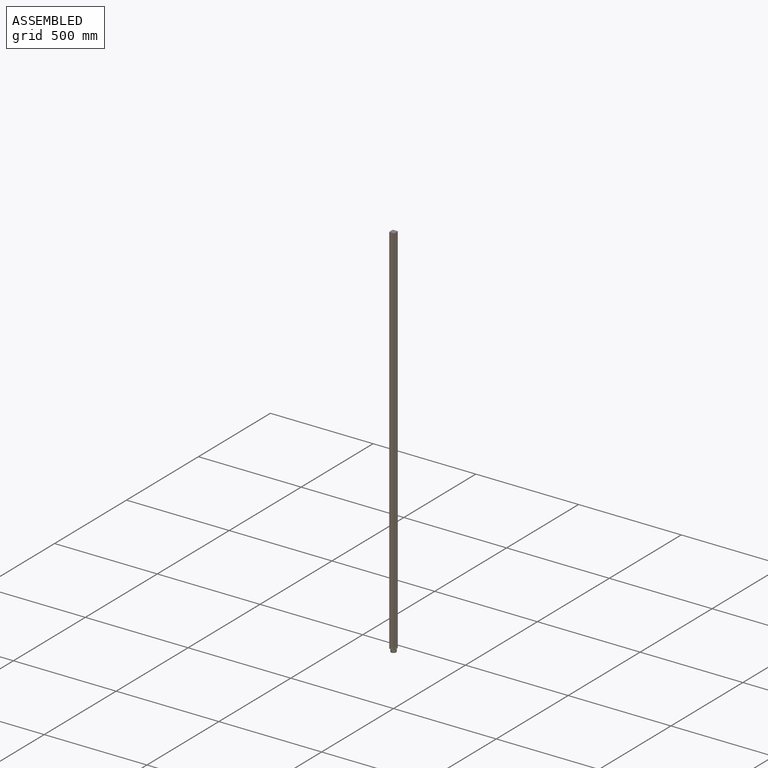
[diagram: assembled view]
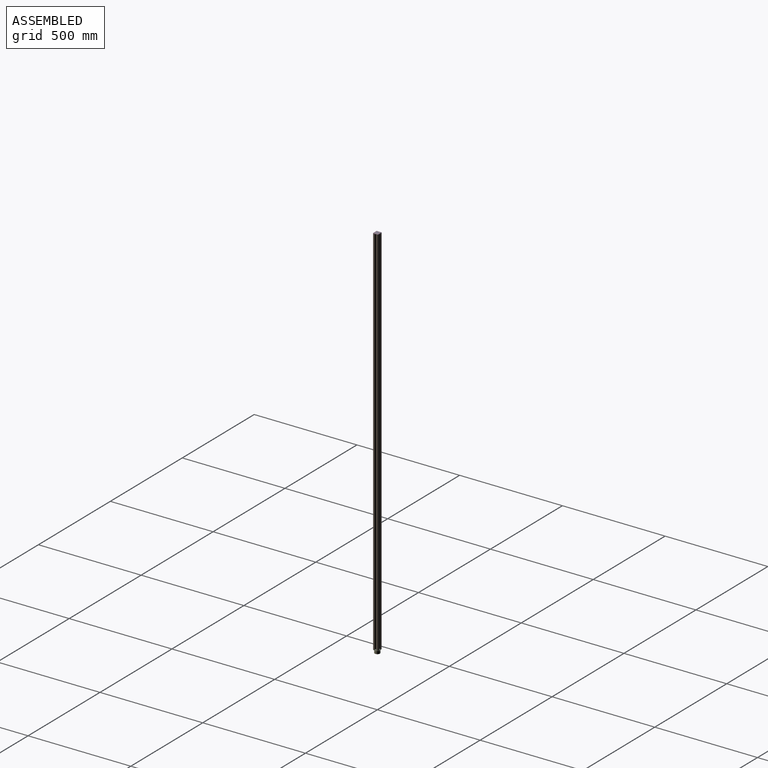
[diagram: assembled view, second angle]
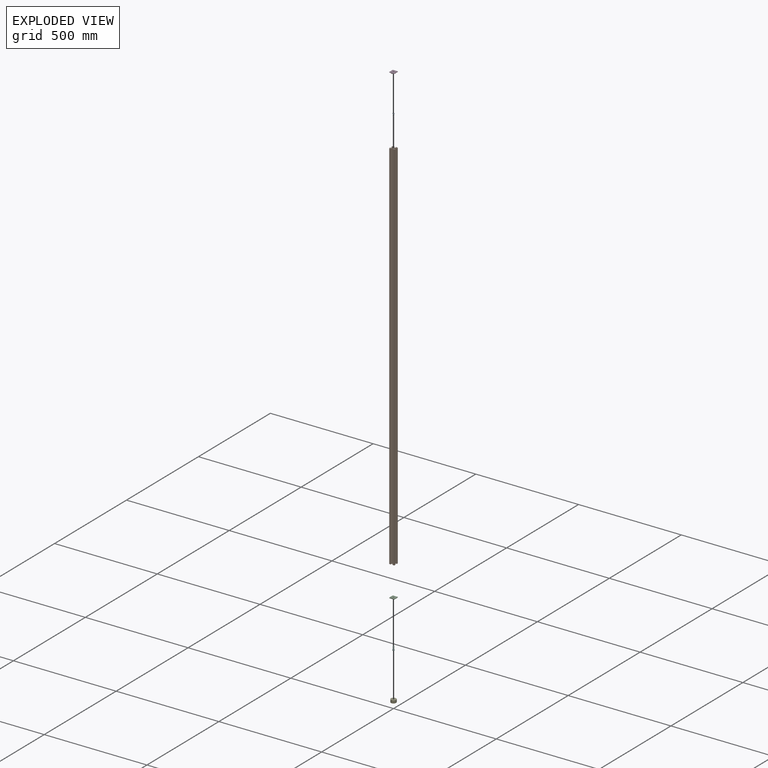
[diagram: exploded view]
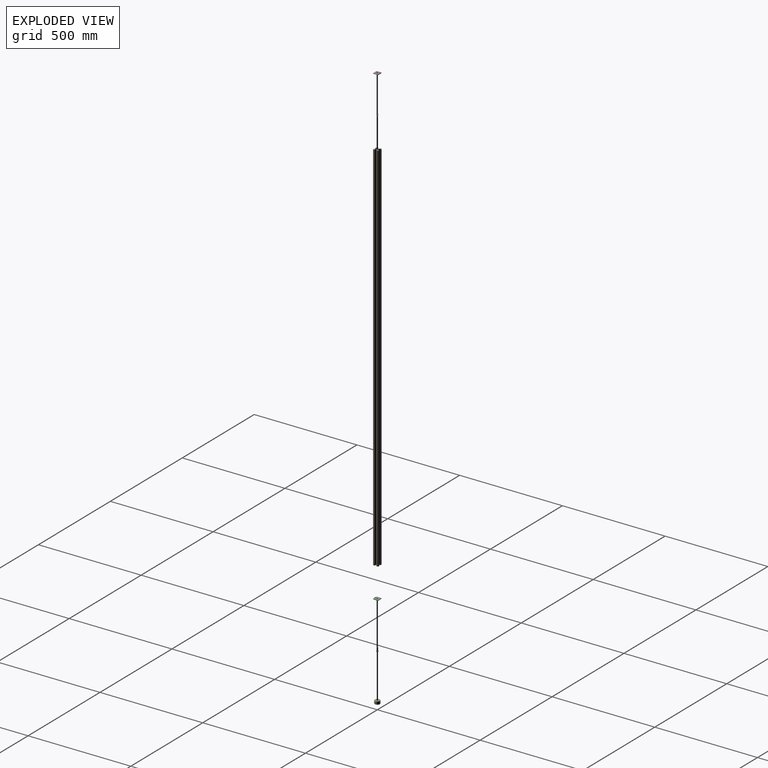
[diagram: exploded view, second angle]
ASSEMBLY  parts=6 mates=12
PART A: 50 faces, bbox 10.2x13.8x10.2 mm
  f0: torus R=0.2mm, axis (0,-1,0), area 42.3mm2, adj f1,f2,f3
  f1: torus R=0.2mm, axis (0,-1,0), area 42.3mm2, adj f0,f2,f3
  f2: plane 0.4x0.4mm, normal (0,1,0), area 0.1mm2, adj f0,f1
  f3: plane 10.16x10.16mm, normal (0,-1,0), area 73mm2, adj f0,f1,f4,f5
  f4: cylinder r=1.6mm len=3.68mm, axis (0,1,0), area 18.5mm2, adj f3,f5,f6
  f5: cylinder r=1.6mm len=12.04mm, axis (0,1,0), area 37.7mm2, adj f3,f4,f6,f7,f8,f9,f10,f11
  f6: cone r=1.6mm half-angle=69deg, axis (0,1,0), area 12.5mm2, adj f4,f5,f7,f10,f49
  f7: cone r=1.6mm half-angle=69deg, axis (0,1,0), area 5mm2, adj f5,f6,f8,f9
  f8: plane 1.4x1.32mm, normal (0,0,-1), area 0.6mm2, adj f5,f7,f9
  f9: cone r=2.92mm half-angle=43.4deg, axis (0,1,0), area 6.8mm2, adj f5,f7,f8,f10
  f10: cone r=2.92mm half-angle=43.4deg, axis (0,1,0), area 17mm2, adj f5,f6,f9,f11,f49
  f11: cylinder r=1.6mm len=3.2mm, axis (0,1,0), area 2.6mm2, adj f5,f10,f12
  f12: cone r=1.6mm half-angle=69deg, axis (0,1,0), area 12.5mm2, adj f5,f11,f13,f16,f48
  f13: cone r=1.6mm half-angle=69deg, axis (0,1,0), area 5mm2, adj f5,f12,f14,f15
  f14: plane 1.4x1.32mm, normal (0,0,-1), area 0.6mm2, adj f5,f13,f15
  f15: cone r=2.92mm half-angle=43.4deg, axis (0,1,0), area 6.8mm2, adj f5,f13,f14,f16
  f16: cone r=2.92mm half-angle=43.4deg, axis (0,1,0), area 17mm2, adj f5,f12,f15,f17,f48
  f17: cylinder r=1.6mm len=3.2mm, axis (0,1,0), area 2.6mm2, adj f5,f16,f18
  f18: cone r=1.6mm half-angle=69deg, axis (0,1,0), area 12.5mm2, adj f5,f17,f19,f22,f47
  f19: cone r=1.6mm half-angle=69deg, axis (0,1,0), area 5mm2, adj f5,f18,f20,f21
  f20: plane 1.4x1.32mm, normal (0,0,-1), area 0.6mm2, adj f5,f19,f21
  f21: cone r=2.92mm half-angle=43.4deg, axis (0,1,0), area 6.8mm2, adj f5,f19,f20,f22
  f22: cone r=2.92mm half-angle=43.4deg, axis (0,1,0), area 17mm2, adj f5,f18,f21,f23,f47
  f23: cylinder r=1.6mm len=3.2mm, axis (0,1,0), area 2.6mm2, adj f5,f22,f24
  f24: cone r=1.6mm half-angle=69deg, axis (0,1,0), area 12.5mm2, adj f5,f23,f25,f28,f46
  f25: cone r=1.6mm half-angle=69deg, axis (0,1,0), area 5mm2, adj f5,f24,f26,f27
  f26: plane 1.4x1.32mm, normal (0,0,-1), area 0.6mm2, adj f5,f25,f27
  f27: cone r=2.92mm half-angle=43.4deg, axis (0,1,0), area 6.8mm2, adj f5,f25,f26,f28
  f28: cone r=2.92mm half-angle=43.4deg, axis (0,1,0), area 17mm2, adj f5,f24,f27,f29,f46
  f29: cylinder r=1.6mm len=3.2mm, axis (0,1,0), area 2.6mm2, adj f5,f28,f30
  f30: cone r=1.6mm half-angle=69deg, axis (0,1,0), area 12.5mm2, adj f5,f29,f31,f34,f35
  f31: cone r=1.6mm half-angle=69deg, axis (0,1,0), area 5mm2, adj f5,f30,f32,f33
  f32: plane 1.4x1.32mm, normal (0,0,-1), area 0.6mm2, adj f5,f31,f33
  f33: cone r=2.92mm half-angle=43.4deg, axis (0,1,0), area 6.8mm2, adj f31,f32,f34,f36
  f34: cone r=2.92mm half-angle=43.4deg, axis (0,1,0), area 17mm2, adj f30,f33,f35,f36
  f35: plane 1.4x0.95mm, normal (0.72,0,0.69), area 0.6mm2, adj f5,f30,f34
  f36: plane 5.61x5.61mm, normal (0,1,0), area 14.5mm2, adj f33,f34,f37,f38,f39,f40
  f37: plane 1.65x0.87mm, normal (0.72,0,0.69), area 1mm2, adj f5,f36,f38
  f38: cone r=2.8mm half-angle=36.1deg, axis (0,1,0), area 17.6mm2, adj f5,f36,f37,f39,f41
  f39: cone r=2.8mm half-angle=36.1deg, axis (0,1,0), area 7.1mm2, adj f5,f36,f38,f40
  f40: plane 1.65x1.2mm, normal (0,0,-1), area 1mm2, adj f5,f36,f39
  f41: cylinder r=1.6mm len=3.2mm, axis (0,1,0), area 1.1mm2, adj f5,f38,f42
  f42: plane 3.45x3.45mm, normal (0,1,0), area 1.3mm2, adj f5,f41,f43,f44
  f43: cone r=1.73mm half-angle=38.9deg, axis (0,1,0), area 3.9mm2, adj f42,f44,f45
  f44: cone r=1.73mm half-angle=38.9deg, axis (0,1,0), area 3.9mm2, adj f42,f43,f45
  f45: plane 2.39x2.39mm, normal (0,-1,0), area 4.5mm2, adj f43,f44
  f46: plane 1.4x0.95mm, normal (0.72,0,0.69), area 0.6mm2, adj f5,f24,f28
  f47: plane 1.4x0.95mm, normal (0.72,0,0.69), area 0.6mm2, adj f5,f18,f22
  f48: plane 1.4x0.95mm, normal (0.72,0,0.69), area 0.6mm2, adj f5,f12,f16
  f49: plane 1.4x0.95mm, normal (0.72,0,0.69), area 0.6mm2, adj f5,f6,f10
PART B: 83 faces, bbox 25.4x25.4x1828.8 mm
  f0: cylinder r=0.51mm len=1828.8mm, axis (0,0,-1), area 2918.4mm2, adj f1,f79,f81,f82
  f1: cylinder r=2.11mm len=1828.8mm, axis (0,0,-1), area 6149.1mm2, adj f0,f2,f81,f82
  f2: cylinder r=0.51mm len=1828.8mm, axis (0,0,-1), area 2918.4mm2, adj f1,f3,f81,f82
  f3: plane 1828.8x3.22mm, normal (0,-1,0), area 5883.8mm2, adj f2,f4,f81,f82
  f4: cylinder r=0.51mm len=1828.8mm, axis (0,0,-1), area 2918.6mm2, adj f3,f5,f81,f82
  f5: plane 1828.8x0.97mm, normal (0,-1,0), area 1780.7mm2, adj f4,f6,f81,f82
  f6: cylinder r=1.1mm len=1828.8mm, axis (0,0,-1), area 6348mm2, adj f5,f7,f81,f82
  f7: plane 1828.8x2.13mm, normal (0,1,0), area 3897.9mm2, adj f6,f8,f81,f82
  f8: cylinder r=1.02mm len=1828.8mm, axis (0,0,-1), area 4378mm2, adj f7,f9,f81,f82
  f9: plane 1828.8x3.33mm, normal (0.71,-0.71,0), area 8612.5mm2, adj f8,f10,f81,f82
  f10: cylinder r=3.17mm len=1828.8mm, axis (0,0,-1), area 4560.4mm2, adj f9,f11,f81,f82
  f11: plane 1828.8x3.24mm, normal (0,-1,0), area 5918.4mm2, adj f10,f12,f81,f82
  f12: cylinder r=3.17mm len=1828.8mm, axis (0,0,-1), area 4560.4mm2, adj f11,f13,f81,f82
  f13: plane 1828.8x3.33mm, normal (-0.71,-0.71,0), area 8612.5mm2, adj f12,f14,f81,f82
  f14: cylinder r=1.02mm len=1828.8mm, axis (0,0,-1), area 4378mm2, adj f13,f15,f81,f82
  f15: plane 1828.8x2.13mm, normal (0,1,0), area 3897.9mm2, adj f14,f16,f81,f82
  f16: cylinder r=1.1mm len=1828.8mm, axis (0,0,-1), area 6348mm2, adj f15,f17,f81,f82
  f17: plane 1828.8x0.97mm, normal (0,-1,0), area 1780.7mm2, adj f16,f18,f81,f82
  f18: cylinder r=0.51mm len=1828.8mm, axis (0,0,-1), area 2918.6mm2, adj f17,f19,f81,f82
  f19: plane 1828.8x3.22mm, normal (0,-1,0), area 5883.8mm2, adj f18,f20,f81,f82
  f20: cylinder r=0.51mm len=1828.8mm, axis (0,0,-1), area 2918.4mm2, adj f19,f21,f81,f82
  f21: cylinder r=2.11mm len=1828.8mm, axis (0,0,-1), area 6149.1mm2, adj f20,f22,f81,f82
  f22: cylinder r=0.51mm len=1828.8mm, axis (0,0,-1), area 2918.4mm2, adj f21,f23,f81,f82
  f23: plane 1828.8x3.22mm, normal (1,0,0), area 5883.8mm2, adj f22,f24,f81,f82
  f24: cylinder r=0.51mm len=1828.8mm, axis (0,0,-1), area 2918.6mm2, adj f23,f25,f81,f82
  f25: plane 1828.8x0.97mm, normal (1,0,0), area 1780.7mm2, adj f24,f26,f81,f82
  f26: cylinder r=1.1mm len=1828.8mm, axis (0,0,-1), area 6348mm2, adj f25,f27,f81,f82
  f27: plane 1828.8x2.13mm, normal (-1,0,0), area 3897.9mm2, adj f26,f28,f81,f82
  f28: cylinder r=1.02mm len=1828.8mm, axis (0,0,-1), area 4378mm2, adj f27,f29,f81,f82
  f29: plane 1828.8x3.33mm, normal (0.71,0.71,0), area 8612.5mm2, adj f28,f30,f81,f82
  f30: cylinder r=3.17mm len=1828.8mm, axis (0,0,-1), area 4560.4mm2, adj f29,f31,f81,f82
  f31: plane 1828.8x3.24mm, normal (1,0,0), area 5918.4mm2, adj f30,f32,f81,f82
  f32: cylinder r=3.17mm len=1828.8mm, axis (0,0,-1), area 4560.4mm2, adj f31,f33,f81,f82
  f33: plane 1828.8x3.33mm, normal (0.71,-0.71,0), area 8612.5mm2, adj f32,f34,f81,f82
  f34: cylinder r=1.02mm len=1828.8mm, axis (0,0,-1), area 4378mm2, adj f33,f35,f81,f82
  f35: plane 1828.8x2.13mm, normal (-1,0,0), area 3897.9mm2, adj f34,f36,f81,f82
  f36: cylinder r=1.1mm len=1828.8mm, axis (0,0,-1), area 6348mm2, adj f35,f37,f81,f82
  f37: plane 1828.8x0.97mm, normal (1,0,0), area 1780.7mm2, adj f36,f38,f81,f82
  f38: cylinder r=0.51mm len=1828.8mm, axis (0,0,-1), area 2918.6mm2, adj f37,f39,f81,f82
  f39: plane 1828.8x3.22mm, normal (1,0,0), area 5883.8mm2, adj f38,f40,f81,f82
  f40: cylinder r=0.51mm len=1828.8mm, axis (0,0,-1), area 2918.4mm2, adj f39,f41,f81,f82
  f41: cylinder r=2.11mm len=1828.8mm, axis (0,0,-1), area 6149.1mm2, adj f40,f42,f81,f82
  f42: cylinder r=0.51mm len=1828.8mm, axis (0,0,-1), area 2918.4mm2, adj f41,f43,f81,f82
  f43: plane 1828.8x3.22mm, normal (0,1,0), area 5883.8mm2, adj f42,f44,f81,f82
  f44: cylinder r=0.51mm len=1828.8mm, axis (0,0,-1), area 2918.6mm2, adj f43,f45,f81,f82
  f45: plane 1828.8x0.97mm, normal (0,1,0), area 1780.7mm2, adj f44,f46,f81,f82
  f46: cylinder r=1.1mm len=1828.8mm, axis (0,0,-1), area 6348mm2, adj f45,f47,f81,f82
  f47: plane 1828.8x2.13mm, normal (0,-1,0), area 3897.9mm2, adj f46,f48,f81,f82
  f48: cylinder r=1.02mm len=1828.8mm, axis (0,0,-1), area 4378mm2, adj f47,f49,f81,f82
  f49: plane 1828.8x3.33mm, normal (-0.71,0.71,0), area 8612.5mm2, adj f48,f50,f81,f82
  f50: cylinder r=3.17mm len=1828.8mm, axis (0,0,-1), area 4560.4mm2, adj f49,f51,f81,f82
  f51: plane 1828.8x3.24mm, normal (0,1,0), area 5918.4mm2, adj f50,f52,f81,f82
  f52: cylinder r=3.17mm len=1828.8mm, axis (0,0,-1), area 4560.4mm2, adj f51,f53,f81,f82
  f53: plane 1828.8x3.33mm, normal (0.71,0.71,0), area 8612.5mm2, adj f52,f54,f81,f82
  f54: cylinder r=1.02mm len=1828.8mm, axis (0,0,-1), area 4378mm2, adj f53,f55,f81,f82
  f55: plane 1828.8x2.13mm, normal (0,-1,0), area 3897.9mm2, adj f54,f56,f81,f82
  f56: cylinder r=1.1mm len=1828.8mm, axis (0,0,-1), area 6348mm2, adj f55,f57,f81,f82
  f57: plane 1828.8x0.97mm, normal (0,1,0), area 1780.7mm2, adj f56,f58,f81,f82
  f58: cylinder r=0.51mm len=1828.8mm, axis (0,0,-1), area 2918.6mm2, adj f57,f59,f81,f82
  f59: plane 1828.8x3.22mm, normal (0,1,0), area 5883.8mm2, adj f58,f60,f81,f82
  f60: cylinder r=0.51mm len=1828.8mm, axis (0,0,-1), area 2918.4mm2, adj f59,f61,f81,f82
  f61: cylinder r=2.11mm len=1828.8mm, axis (0,0,-1), area 6149.1mm2, adj f60,f62,f81,f82
  f62: cylinder r=0.51mm len=1828.8mm, axis (0,0,-1), area 2918.4mm2, adj f61,f63,f81,f82
  f63: plane 1828.8x3.22mm, normal (-1,0,0), area 5883.8mm2, adj f62,f64,f81,f82
  f64: cylinder r=0.51mm len=1828.8mm, axis (0,0,-1), area 2918.6mm2, adj f63,f65,f81,f82
  f65: plane 1828.8x0.97mm, normal (-1,0,0), area 1780.7mm2, adj f64,f66,f81,f82
  f66: cylinder r=1.1mm len=1828.8mm, axis (0,0,-1), area 6348mm2, adj f65,f67,f81,f82
  f67: plane 1828.8x2.13mm, normal (1,0,0), area 3897.9mm2, adj f66,f68,f81,f82
  f68: cylinder r=1.02mm len=1828.8mm, axis (0,0,-1), area 4378mm2, adj f67,f69,f81,f82
  f69: plane 1828.8x3.33mm, normal (-0.71,-0.71,0), area 8612.5mm2, adj f68,f70,f81,f82
  f70: cylinder r=3.17mm len=1828.8mm, axis (0,0,-1), area 4560.4mm2, adj f69,f71,f81,f82
  f71: plane 1828.8x3.24mm, normal (-1,0,0), area 5918.4mm2, adj f70,f72,f81,f82
  f72: cylinder r=3.17mm len=1828.8mm, axis (0,0,-1), area 4560.4mm2, adj f71,f73,f81,f82
  f73: plane 1828.8x3.33mm, normal (-0.71,0.71,0), area 8612.5mm2, adj f72,f74,f81,f82
  f74: cylinder r=1.02mm len=1828.8mm, axis (0,0,-1), area 4378mm2, adj f73,f75,f81,f82
  f75: plane 1828.8x2.13mm, normal (1,0,0), area 3897.9mm2, adj f74,f76,f81,f82
  f76: cylinder r=1.1mm len=1828.8mm, axis (0,0,-1), area 6348mm2, adj f75,f77,f81,f82
  f77: plane 1828.8x0.97mm, normal (-1,0,0), area 1780.7mm2, adj f76,f78,f81,f82
  f78: cylinder r=0.51mm len=1828.8mm, axis (0,0,-1), area 2918.6mm2, adj f77,f79,f81,f82
  f79: plane 1828.8x3.22mm, normal (-1,0,0), area 5883.8mm2, adj f0,f78,f81,f82
  f80: cylinder r=2.6mm len=1828.8mm, axis (0,0,-1), area 29916mm2, adj f81,f82
  f81: plane 25.4x25.4mm, normal (0,0,1), area 279.7mm2, adj f0,f1,f2,f3,f4,f5,f6,f7
  f82: plane 25.4x25.4mm, normal (0,0,-1), area 279.7mm2, adj f0,f1,f2,f3,f4,f5,f6,f7
PART C: 24 faces, bbox 25.4x25.4x5.3 mm
  f0: plane 2.11x2.11mm, normal (1,0,0), area 4.4mm2, adj f1,f2,f21,f22
  f1: plane 21.18x3.18mm, normal (0,1,0), area 36mm2, adj f0,f2,f3,f7,f9,f22,f23
  f2: plane 25.4x25.4mm, normal (0,0,-1), area 594.5mm2, adj f0,f1,f3,f4,f9,f10,f11,f12
  f3: cylinder r=2.11mm len=2.11mm, axis (0,0,-1), area 3.5mm2, adj f1,f2,f4,f6
  f4: plane 21.18x1.07mm, normal (-1,0,0), area 22.6mm2, adj f2,f3,f5,f13
  f5: cylinder r=2.11mm len=21.18mm, axis (0,1,0), area 70.2mm2, adj f4,f6,f14,f16
  f6: sphere r=2.11mm, area 7mm2, adj f3,f5,f7
  f7: cylinder r=2.11mm len=21.18mm, axis (1,0,0), area 70.2mm2, adj f1,f6,f8,f16
  f8: sphere r=2.11mm, area 7mm2, adj f7,f9,f17
  f9: cylinder r=2.11mm len=2.11mm, axis (0,0,1), area 3.5mm2, adj f1,f2,f8,f10
  f10: plane 21.18x1.07mm, normal (1,0,0), area 22.6mm2, adj f2,f9,f11,f17
  f11: cylinder r=2.11mm len=2.11mm, axis (0,0,1), area 3.5mm2, adj f2,f10,f12,f18
  f12: plane 21.18x1.07mm, normal (0,-1,0), area 22.6mm2, adj f2,f11,f13,f15
  f13: cylinder r=2.11mm len=2.11mm, axis (0,0,1), area 3.5mm2, adj f2,f4,f12,f14
  f14: sphere r=2.11mm, area 7mm2, adj f5,f13,f15
  f15: cylinder r=2.11mm len=21.18mm, axis (-1,0,0), area 70.2mm2, adj f12,f14,f16,f18
  f16: plane 21.18x21.18mm, normal (0,0,1), area 415.3mm2, adj f5,f7,f15,f17,f19,f20
  f17: cylinder r=2.11mm len=21.18mm, axis (0,-1,0), area 70.2mm2, adj f8,f10,f16,f18
  f18: sphere r=2.11mm, area 7mm2, adj f11,f15,f17
  f19: cylinder r=3.26mm len=6.53mm, axis (0,0,1), area 32.6mm2, adj f2,f16,f20
  f20: cylinder r=3.26mm len=6.53mm, axis (0,0,1), area 32.6mm2, adj f2,f16,f19
  f21: plane 6.35x2.11mm, normal (0,-1,0), area 13.4mm2, adj f0,f2,f22,f23
  f22: plane 6.35x2.11mm, normal (0,0,-1), area 13.4mm2, adj f0,f1,f21,f23
  f23: plane 2.11x2.11mm, normal (-1,0,0), area 4.4mm2, adj f1,f2,f21,f22
PART D: same geometry as C
PART E: 13 faces, bbox 27.5x14.3x27.5 mm
  f0: plane 13.49x13.49mm, normal (0,1,0), area 102.9mm2, adj f1,f2,f11,f12
  f1: cylinder r=6.74mm len=13.49mm, axis (0,1,0), area 167.9mm2, adj f0,f2,f3
  f2: cylinder r=6.74mm len=13.49mm, axis (0,1,0), area 167.9mm2, adj f0,f1,f3
  f3: plane 24.13x24.13mm, normal (0,1,0), area 314.4mm2, adj f1,f2,f4,f5
  f4: torus R=12.06mm, axis (0,-1,0), area 39.1mm2, adj f3,f5,f7
  f5: torus R=12.06mm, axis (0,-1,0), area 39.1mm2, adj f3,f4,f6
  f6: cylinder r=12.7mm len=25.4mm, axis (0,1,0), area 518.9mm2, adj f5,f7,f9
  f7: cylinder r=12.7mm len=25.4mm, axis (0,1,0), area 518.9mm2, adj f4,f6,f8
  f8: torus R=12.06mm, axis (0,-1,0), area 39.1mm2, adj f7,f9,f10
  f9: torus R=12.06mm, axis (0,-1,0), area 39.1mm2, adj f6,f8,f10
  f10: plane 24.13x24.13mm, normal (0,-1,0), area 417.3mm2, adj f8,f9,f11,f12
  f11: cylinder r=3.57mm len=7.14mm, axis (0,1,0), area 71.2mm2, adj f0,f10,f12
  f12: cylinder r=3.57mm len=7.14mm, axis (0,1,0), area 71.2mm2, adj f0,f10,f11
PART F: 18 faces, bbox 22.4x11.1x11.1 mm
  f0: plane 2.22x1.98mm, normal (0,-0.5,0.87), area 5.1mm2, adj f1,f2,f5,f6
  f1: plane 2.29x2.22mm, normal (0,-1,0), area 5.1mm2, adj f0,f2,f6,f7
  f2: plane 4.58x3.97mm, normal (-1,0,0), area 13.6mm2, adj f0,f1,f3,f4,f5,f7
  f3: plane 2.22x1.98mm, normal (0,0.5,-0.87), area 5.1mm2, adj f2,f4,f6,f7
  f4: plane 2.29x2.22mm, normal (0,1,0), area 5.1mm2, adj f2,f3,f5,f6
  f5: plane 2.22x1.98mm, normal (0,0.5,0.87), area 5.1mm2, adj f0,f2,f4,f6
  f6: plane 6.35x6.35mm, normal (-1,0,0), area 18mm2, adj f0,f1,f3,f4,f5,f7,f8,f9
  f7: plane 2.22x1.98mm, normal (0,-0.5,-0.87), area 5.1mm2, adj f1,f2,f3,f6
  f8: torus R=0.01mm, axis (1,0,0), area 54.4mm2, adj f6,f9,f11
  f9: torus R=0.01mm, axis (1,0,0), area 54.4mm2, adj f6,f8,f10
  f10: cylinder r=5.55mm len=11.1mm, axis (-1,0,0), area 7.5mm2, adj f9,f11,f12
  f11: cylinder r=5.55mm len=11.1mm, axis (-1,0,0), area 7.5mm2, adj f8,f10,f12
  f12: plane 11.1x11.1mm, normal (1,0,0), area 65.1mm2, adj f10,f11,f13,f14
  f13: cylinder r=3.17mm len=18.29mm, axis (-1,0,0), area 182.5mm2, adj f12,f14,f16
  f14: cylinder r=3.17mm len=18.29mm, axis (-1,0,0), area 182.5mm2, adj f12,f13,f15
  f15: cone r=3.17mm half-angle=45deg, axis (-1,0,0), area 9.4mm2, adj f14,f16,f17
  f16: cone r=3.17mm half-angle=45deg, axis (-1,0,0), area 9.4mm2, adj f13,f15,f17
  f17: plane 4.84x4.84mm, normal (1,0,0), area 18.4mm2, adj f15,f16
PLACE A rot(axis=(0,-0.71,-0.71),180deg) t=(0,0,1831.98)mm
PLACE B at identity fixed
PLACE C rot(axis=(1,0,0),180deg) t=(0,0,-3.18)mm
PLACE D rot(axis=(0,0,1),180deg) t=(0,0,1831.98)mm
PLACE E rot(axis=(-0.96,-0.19,0.19),92.2deg) t=(0,0,-9.53)mm
PLACE F rot(axis=(0.19,-0.96,0.19),92.2deg) t=(0,0,-9.53)mm
MATE cylindrical F.f10 <-> C.f19  axis (0,0,-1) through (0,0,-0.38)mm
MATE planar C.f4 <-> B.f79  axis (-1,0,0) through (-12.7,0,-0.53)mm
MATE planar A.f1 <-> D.f19  axis (0,0,-1) through (0,0,1831.98)mm
MATE planar D.f4 <-> B.f23  axis (1,0,0) through (12.7,0,1829.33)mm
MATE cylindrical F.f10 <-> E.f1  axis (0,0,-1) through (0,0,-0.38)mm
MATE cylindrical A.f4 <-> D.f19  axis (0,0,1) through (0,0,1830.13)mm
MATE planar D.f1 <-> B.f19  axis (0,-1,0) through (0,-12.7,1828.74)mm
MATE planar F.f9 <-> E.f0  axis (0,0,1) through (0,0,-9.53)mm
MATE planar C.f2 <-> B.f80  axis (0,0,1) through (3.26,0,0)mm
MATE planar D.f2 <-> B.f81  axis (0,0,-1) through (-3.26,0,1828.8)mm
MATE planar E.f1 <-> C.f19  axis (0,0,1) through (0,0,-3.18)mm
MATE planar C.f1 <-> B.f3  axis (0,-1,0) through (3.17,-12.7,1.05)mm
